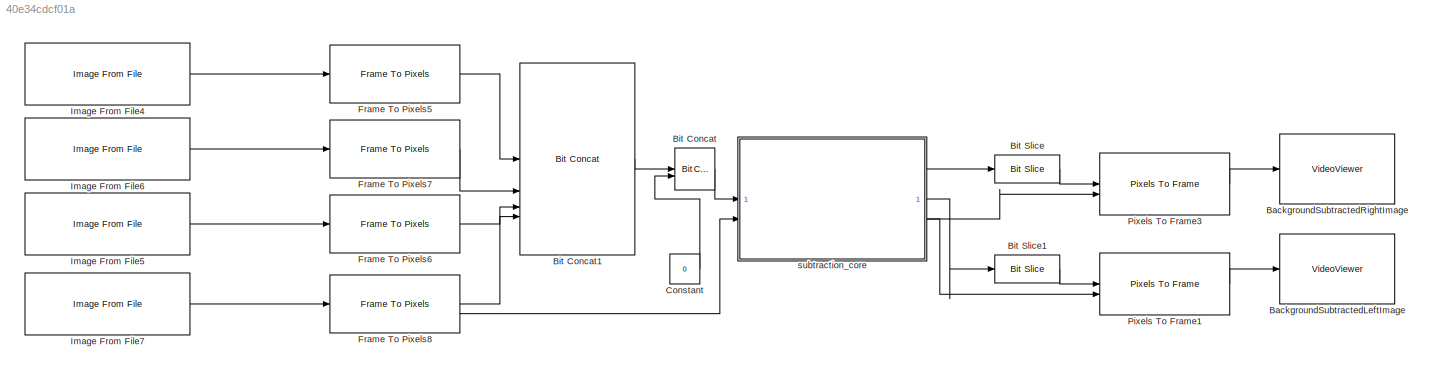
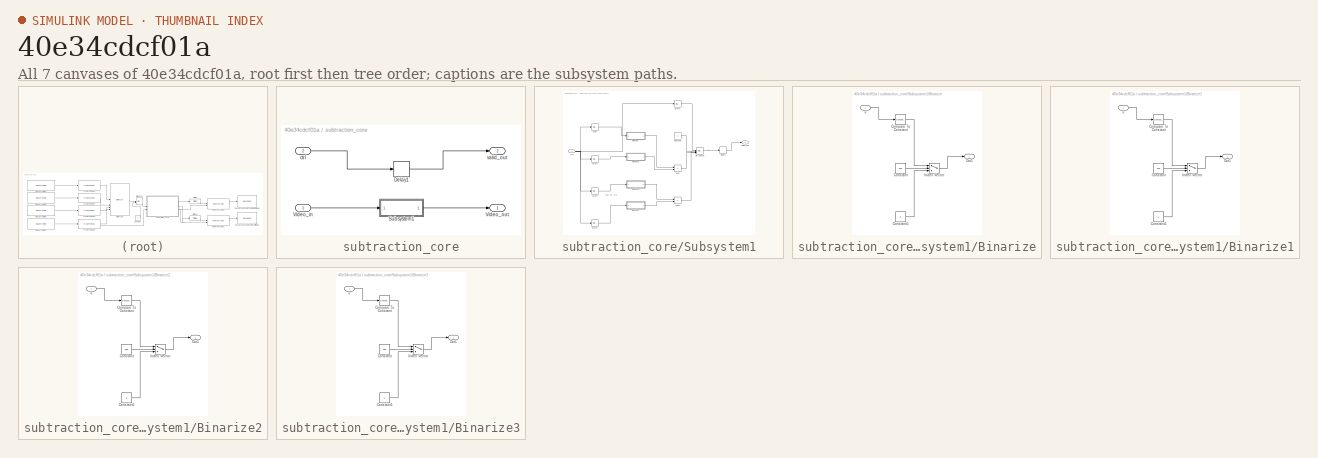
[diagram: thumbnail index - all 7 canvases of the model, root first then tree order]
MODEL slx_40e34cdcf01a
KIND model
CONFIG AbsTol = auto
CONFIG EnableMultiTasking = off
CONFIG FixedStep = auto
CONFIG MaxStep = auto
CONFIG MinStep = auto
CONFIG RelTol = 1e-3
CONFIG SampleTimeConstraint = Unconstrained
CONFIG SolverName = VariableStepAuto
CONFIG StartTime = 0.0
CONFIG StopTime = 10.0
BLOCK [VideoViewer] BackgroundSubtractedLeftImage
  FigPos = [0 1004 1920 930]
  ScopeSpecificationString = vipscopes.VideoViewerScopeCfg('CurrentConfiguration', extmgr.ConfigurationSet(extmgr.Configuration('Core','General UI',true),extmgr.Configuration('Core','Source UI',true),extmgr.Configuration('Sources','WiredSimulink',true),extmgr.Configuration('Sources','Simulink',false),extmgr.Configuration('Sources','Workspace',false),extmgr.Configuration('Sources','File',false),extmgr.Configuration('Sources','...<+607ch>
  colormapValue = gray(256)
BLOCK [VideoViewer] BackgroundSubtractedRightImage
  FigPos = [0 1004 1920 930]
  ScopeSpecificationString = vipscopes.VideoViewerScopeCfg('CurrentConfiguration', extmgr.ConfigurationSet(extmgr.Configuration('Core','General UI',true),extmgr.Configuration('Core','Source UI',true),extmgr.Configuration('Sources','WiredSimulink',true),extmgr.Configuration('Sources','Simulink',false),extmgr.Configuration('Sources','Workspace',false),extmgr.Configuration('Sources','File',false),extmgr.Configuration('Sources','...<+607ch>
  colormapValue = gray(256)
BLOCK [Reference] Bit Concat  REF=hdlsllib/Logic and Bit
Operations/Bit Concat
  SourceBlock = hdlsllib/Logic and Bit\nOperations/Bit Concat
  SourceType = Bit Concat
BLOCK [Reference] Bit Concat1  REF=hdlsllib/Logic and Bit
Operations/Bit Concat
  SourceBlock = hdlsllib/Logic and Bit\nOperations/Bit Concat
  SourceType = Bit Concat
BLOCK [Reference] Bit Slice  REF=hdlsllib/Logic and Bit
Operations/Bit Slice
  SourceBlock = hdlsllib/Logic and Bit\nOperations/Bit Slice
  SourceType = Bit Slice
BLOCK [Reference] Bit Slice1  REF=hdlsllib/Logic and Bit
Operations/Bit Slice
  SourceBlock = hdlsllib/Logic and Bit\nOperations/Bit Slice
  SourceType = Bit Slice
BLOCK [Constant] Constant
  OutDataTypeStr = uint32
  SampleTime = -1
  Value = 0
BLOCK [Reference] Frame To Pixels5  REF=visionhdlio/Frame To Pixels
  SourceBlock = visionhdlio/Frame To Pixels
  SourceType = Frame To Pixels
BLOCK [Reference] Frame To Pixels6  REF=visionhdlio/Frame To Pixels
  SourceBlock = visionhdlio/Frame To Pixels
  SourceType = Frame To Pixels
BLOCK [Reference] Frame To Pixels7  REF=visionhdlio/Frame To Pixels
  SourceBlock = visionhdlio/Frame To Pixels
  SourceType = Frame To Pixels
BLOCK [Reference] Frame To Pixels8  REF=visionhdlio/Frame To Pixels
  SourceBlock = visionhdlio/Frame To Pixels
  SourceType = Frame To Pixels
BLOCK [Reference] Image From File4  REF=visionsources/Image From File
  SourceBlock = visionsources/Image From File
  SourceType = Image From File
  Tag = vipblks_nd
BLOCK [Reference] Image From File5  REF=visionsources/Image From File
  SourceBlock = visionsources/Image From File
  SourceType = Image From File
  Tag = vipblks_nd
BLOCK [Reference] Image From File6  REF=visionsources/Image From File
  SourceBlock = visionsources/Image From File
  SourceType = Image From File
  Tag = vipblks_nd
BLOCK [Reference] Image From File7  REF=visionsources/Image From File
  SourceBlock = visionsources/Image From File
  SourceType = Image From File
  Tag = vipblks_nd
BLOCK [Reference] Pixels To Frame1  REF=visionhdlio/Pixels To Frame
  SourceBlock = visionhdlio/Pixels To Frame
  SourceType = Pixels To Frame
BLOCK [Reference] Pixels To Frame3  REF=visionhdlio/Pixels To Frame
  SourceBlock = visionhdlio/Pixels To Frame
  SourceType = Pixels To Frame
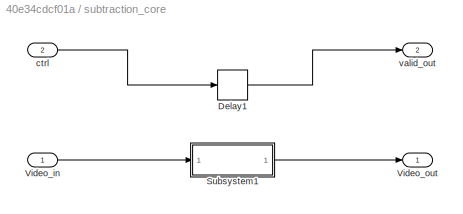
BLOCK [SubSystem] subtraction_core
  TreatAsAtomicUnit = on
BLOCK [Delay] subtraction_core/Delay1
  DelayLength = double(2)
  InputPortMap = u0
  SampleTime = 2.77039007092199e-06
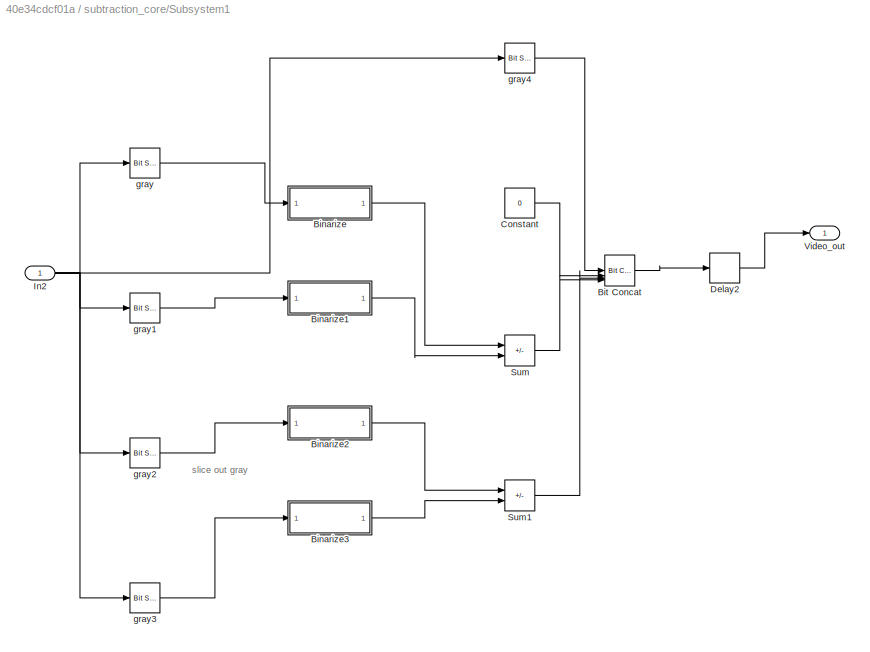
BLOCK [SubSystem] subtraction_core/Subsystem1
BLOCK [SubSystem] subtraction_core/Subsystem1/Binarize
BLOCK [Reference] subtraction_core/Subsystem1/Binarize/Compare To Constant  REF=simulink/Logic and Bit
Operations/Compare
To Constant
  SourceBlock = simulink/Logic and Bit\nOperations/Compare\nTo Constant
  SourceType = Compare To Constant
BLOCK [Constant] subtraction_core/Subsystem1/Binarize/Constant
  OutDataTypeStr = uint8
  SampleTime = 2.77039007092199e-06
  Value = 255
BLOCK [Constant] subtraction_core/Subsystem1/Binarize/Constant1
  OutDataTypeStr = int8
  SampleTime = 2.77039007092199e-06
  Value = 0
BLOCK [MultiPortSwitch] subtraction_core/Subsystem1/Binarize/Index Vector
  DataPortOrder = Zero-based contiguous
  DiagnosticForDefault = None
  InputSameDT = off
  Inputs = 2
  OutDataTypeStr = uint8
  SampleTime = 2.77039007092199e-06
  SaturateOnIntegerOverflow = off
  zeroidx = on
BLOCK [Outport] subtraction_core/Subsystem1/Binarize/Out1
  SampleTime = 2.77039007092199e-06
BLOCK [Inport] subtraction_core/Subsystem1/Binarize/u
  OutDataTypeStr = uint8
  PortDimensions = 1
  SampleTime = 2.77039007092199e-06
BLOCK [SubSystem] subtraction_core/Subsystem1/Binarize1
BLOCK [Reference] subtraction_core/Subsystem1/Binarize1/Compare To Constant  REF=simulink/Logic and Bit
Operations/Compare
To Constant
  SourceBlock = simulink/Logic and Bit\nOperations/Compare\nTo Constant
  SourceType = Compare To Constant
BLOCK [Constant] subtraction_core/Subsystem1/Binarize1/Constant
  OutDataTypeStr = uint8
  SampleTime = 2.77039007092199e-06
  Value = 255
BLOCK [Constant] subtraction_core/Subsystem1/Binarize1/Constant1
  OutDataTypeStr = int8
  SampleTime = 2.77039007092199e-06
  Value = 0
BLOCK [MultiPortSwitch] subtraction_core/Subsystem1/Binarize1/Index Vector
  DataPortOrder = Zero-based contiguous
  DiagnosticForDefault = None
  InputSameDT = off
  Inputs = 2
  OutDataTypeStr = uint8
  SampleTime = 2.77039007092199e-06
  SaturateOnIntegerOverflow = off
  zeroidx = on
BLOCK [Outport] subtraction_core/Subsystem1/Binarize1/Out1
  SampleTime = 2.77039007092199e-06
BLOCK [Inport] subtraction_core/Subsystem1/Binarize1/u
  OutDataTypeStr = uint8
  PortDimensions = 1
  SampleTime = 2.77039007092199e-06
BLOCK [SubSystem] subtraction_core/Subsystem1/Binarize2
BLOCK [Reference] subtraction_core/Subsystem1/Binarize2/Compare To Constant  REF=simulink/Logic and Bit
Operations/Compare
To Constant
  SourceBlock = simulink/Logic and Bit\nOperations/Compare\nTo Constant
  SourceType = Compare To Constant
BLOCK [Constant] subtraction_core/Subsystem1/Binarize2/Constant
  OutDataTypeStr = uint8
  SampleTime = 2.77039007092199e-06
  Value = 255
BLOCK [Constant] subtraction_core/Subsystem1/Binarize2/Constant1
  OutDataTypeStr = int8
  SampleTime = 2.77039007092199e-06
  Value = 0
BLOCK [MultiPortSwitch] subtraction_core/Subsystem1/Binarize2/Index Vector
  DataPortOrder = Zero-based contiguous
  DiagnosticForDefault = None
  InputSameDT = off
  Inputs = 2
  OutDataTypeStr = uint8
  SampleTime = 2.77039007092199e-06
  SaturateOnIntegerOverflow = off
  zeroidx = on
BLOCK [Outport] subtraction_core/Subsystem1/Binarize2/Out1
  SampleTime = 2.77039007092199e-06
BLOCK [Inport] subtraction_core/Subsystem1/Binarize2/u
  OutDataTypeStr = uint8
  PortDimensions = 1
  SampleTime = 2.77039007092199e-06
BLOCK [SubSystem] subtraction_core/Subsystem1/Binarize3
BLOCK [Reference] subtraction_core/Subsystem1/Binarize3/Compare To Constant  REF=simulink/Logic and Bit
Operations/Compare
To Constant
  SourceBlock = simulink/Logic and Bit\nOperations/Compare\nTo Constant
  SourceType = Compare To Constant
BLOCK [Constant] subtraction_core/Subsystem1/Binarize3/Constant
  OutDataTypeStr = uint8
  SampleTime = 2.77039007092199e-06
  Value = 255
BLOCK [Constant] subtraction_core/Subsystem1/Binarize3/Constant1
  OutDataTypeStr = int8
  SampleTime = 2.77039007092199e-06
  Value = 0
BLOCK [MultiPortSwitch] subtraction_core/Subsystem1/Binarize3/Index Vector
  DataPortOrder = Zero-based contiguous
  DiagnosticForDefault = None
  InputSameDT = off
  Inputs = 2
  OutDataTypeStr = uint8
  SampleTime = 2.77039007092199e-06
  SaturateOnIntegerOverflow = off
  zeroidx = on
BLOCK [Outport] subtraction_core/Subsystem1/Binarize3/Out1
  SampleTime = 2.77039007092199e-06
BLOCK [Inport] subtraction_core/Subsystem1/Binarize3/u
  OutDataTypeStr = uint8
  PortDimensions = 1
  SampleTime = 2.77039007092199e-06
BLOCK [Reference] subtraction_core/Subsystem1/Bit Concat  REF=hdlsllib/Logic and Bit
Operations/Bit Concat
  SourceBlock = hdlsllib/Logic and Bit\nOperations/Bit Concat
  SourceType = Bit Concat
BLOCK [Constant] subtraction_core/Subsystem1/Constant
  OutDataTypeStr = uint16
  SampleTime = 2.77039007092199e-06
  Value = 0
BLOCK [Delay] subtraction_core/Subsystem1/Delay2
  DelayLength = double(2)
  InitialCondition = 0
  InputPortMap = u0
  SampleTime = 2.77039007092199e-06
BLOCK [Inport] subtraction_core/Subsystem1/In2
  OutDataTypeStr = fixdt(0, 64, 0)
  PortDimensions = 1
  SampleTime = 2.77039007092199e-06
BLOCK [Sum] subtraction_core/Subsystem1/Sum
  AccumDataTypeStr = fixdt(1, 9, 0)
  IconShape = rectangular
  Inputs = +-
  OutDataTypeStr = uint8
  SampleTime = 2.77039007092199e-06
  SaturateOnIntegerOverflow = on
BLOCK [Sum] subtraction_core/Subsystem1/Sum1
  AccumDataTypeStr = fixdt(1, 9, 0)
  IconShape = rectangular
  Inputs = +-
  OutDataTypeStr = uint8
  SampleTime = 2.77039007092199e-06
  SaturateOnIntegerOverflow = on
BLOCK [Outport] subtraction_core/Subsystem1/Video_out
  InitialOutput = [0]
  SampleTime = 2.77039007092199e-06
BLOCK [Reference] subtraction_core/Subsystem1/gray  REF=hdlsllib/Logic and Bit
Operations/Bit Slice
  SourceBlock = hdlsllib/Logic and Bit\nOperations/Bit Slice
  SourceType = Bit Slice
BLOCK [Reference] subtraction_core/Subsystem1/gray1  REF=hdlsllib/Logic and Bit
Operations/Bit Slice
  SourceBlock = hdlsllib/Logic and Bit\nOperations/Bit Slice
  SourceType = Bit Slice
BLOCK [Reference] subtraction_core/Subsystem1/gray2  REF=hdlsllib/Logic and Bit
Operations/Bit Slice
  SourceBlock = hdlsllib/Logic and Bit\nOperations/Bit Slice
  SourceType = Bit Slice
BLOCK [Reference] subtraction_core/Subsystem1/gray3  REF=hdlsllib/Logic and Bit
Operations/Bit Slice
  SourceBlock = hdlsllib/Logic and Bit\nOperations/Bit Slice
  SourceType = Bit Slice
BLOCK [Reference] subtraction_core/Subsystem1/gray4  REF=hdlsllib/Logic and Bit
Operations/Bit Slice
  SourceBlock = hdlsllib/Logic and Bit\nOperations/Bit Slice
  SourceType = Bit Slice
BLOCK [Inport] subtraction_core/Video_in
  OutDataTypeStr = fixdt(0, 64, 0)
  PortDimensions = 1
  SampleTime = 2.77039007092199e-06
BLOCK [Outport] subtraction_core/Video_out
  SampleTime = 2.77039007092199e-06
  VectorParamsAs1DForOutWhenUnconnected = off
BLOCK [Inport] subtraction_core/ctrl
  Port = 2
BLOCK [Outport] subtraction_core/valid_out
  Port = 2
  VectorParamsAs1DForOutWhenUnconnected = off
ANNOTATION subtraction_core/Subsystem1: slice out gray
LINE Bit Concat1:1 -> Bit Concat:1
LINE Bit Concat:1 -> subtraction_core:1
LINE Bit Slice1:1 -> Pixels To Frame1:1
LINE Bit Slice:1 -> Pixels To Frame3:1
LINE Constant:1 -> Bit Concat:2
LINE Frame To Pixels5:1 -> Bit Concat1:1
LINE Frame To Pixels6:1 -> Bit Concat1:3
LINE Frame To Pixels7:1 -> Bit Concat1:2
LINE Frame To Pixels8:1 -> Bit Concat1:4
LINE Frame To Pixels8:2 -> subtraction_core:2
LINE Image From File4:1 -> Frame To Pixels5:1
LINE Image From File5:1 -> Frame To Pixels6:1
LINE Image From File6:1 -> Frame To Pixels7:1
LINE Image From File7:1 -> Frame To Pixels8:1
LINE Pixels To Frame1:1 -> BackgroundSubtractedLeftImage:1
LINE Pixels To Frame3:1 -> BackgroundSubtractedRightImage:1
LINE subtraction_core/Delay1:1 -> subtraction_core/valid_out:1
LINE subtraction_core/Subsystem1/Binarize/Compare To Constant:1 -> subtraction_core/Subsystem1/Binarize/Index Vector:1
LINE subtraction_core/Subsystem1/Binarize/Constant1:1 -> subtraction_core/Subsystem1/Binarize/Index Vector:3
LINE subtraction_core/Subsystem1/Binarize/Constant:1 -> subtraction_core/Subsystem1/Binarize/Index Vector:2
LINE subtraction_core/Subsystem1/Binarize/Index Vector:1 -> subtraction_core/Subsystem1/Binarize/Out1:1
LINE subtraction_core/Subsystem1/Binarize/u:1 -> subtraction_core/Subsystem1/Binarize/Compare To Constant:1
LINE subtraction_core/Subsystem1/Binarize1/Compare To Constant:1 -> subtraction_core/Subsystem1/Binarize1/Index Vector:1
LINE subtraction_core/Subsystem1/Binarize1/Constant1:1 -> subtraction_core/Subsystem1/Binarize1/Index Vector:3
LINE subtraction_core/Subsystem1/Binarize1/Constant:1 -> subtraction_core/Subsystem1/Binarize1/Index Vector:2
LINE subtraction_core/Subsystem1/Binarize1/Index Vector:1 -> subtraction_core/Subsystem1/Binarize1/Out1:1
LINE subtraction_core/Subsystem1/Binarize1/u:1 -> subtraction_core/Subsystem1/Binarize1/Compare To Constant:1
LINE subtraction_core/Subsystem1/Binarize1:1 -> subtraction_core/Subsystem1/Sum:2
LINE subtraction_core/Subsystem1/Binarize2/Compare To Constant:1 -> subtraction_core/Subsystem1/Binarize2/Index Vector:1
LINE subtraction_core/Subsystem1/Binarize2/Constant1:1 -> subtraction_core/Subsystem1/Binarize2/Index Vector:3
LINE subtraction_core/Subsystem1/Binarize2/Constant:1 -> subtraction_core/Subsystem1/Binarize2/Index Vector:2
LINE subtraction_core/Subsystem1/Binarize2/Index Vector:1 -> subtraction_core/Subsystem1/Binarize2/Out1:1
LINE subtraction_core/Subsystem1/Binarize2/u:1 -> subtraction_core/Subsystem1/Binarize2/Compare To Constant:1
LINE subtraction_core/Subsystem1/Binarize2:1 -> subtraction_core/Subsystem1/Sum1:1
LINE subtraction_core/Subsystem1/Binarize3/Compare To Constant:1 -> subtraction_core/Subsystem1/Binarize3/Index Vector:1
LINE subtraction_core/Subsystem1/Binarize3/Constant1:1 -> subtraction_core/Subsystem1/Binarize3/Index Vector:3
LINE subtraction_core/Subsystem1/Binarize3/Constant:1 -> subtraction_core/Subsystem1/Binarize3/Index Vector:2
LINE subtraction_core/Subsystem1/Binarize3/Index Vector:1 -> subtraction_core/Subsystem1/Binarize3/Out1:1
LINE subtraction_core/Subsystem1/Binarize3/u:1 -> subtraction_core/Subsystem1/Binarize3/Compare To Constant:1
LINE subtraction_core/Subsystem1/Binarize3:1 -> subtraction_core/Subsystem1/Sum1:2
LINE subtraction_core/Subsystem1/Binarize:1 -> subtraction_core/Subsystem1/Sum:1
LINE subtraction_core/Subsystem1/Bit Concat:1 -> subtraction_core/Subsystem1/Delay2:1
LINE subtraction_core/Subsystem1/Constant:1 -> subtraction_core/Subsystem1/Bit Concat:2
LINE subtraction_core/Subsystem1/Delay2:1 -> subtraction_core/Subsystem1/Video_out:1
NET subtraction_core/Subsystem1/In2:1 -> subtraction_core/Subsystem1/gray1:1, subtraction_core/Subsystem1/gray2:1, subtraction_core/Subsystem1/gray3:1, subtraction_core/Subsystem1/gray4:1, subtraction_core/Subsystem1/gray:1
LINE subtraction_core/Subsystem1/Sum1:1 -> subtraction_core/Subsystem1/Bit Concat:3
LINE subtraction_core/Subsystem1/Sum:1 -> subtraction_core/Subsystem1/Bit Concat:4
LINE subtraction_core/Subsystem1/gray1:1 -> subtraction_core/Subsystem1/Binarize1:1
LINE subtraction_core/Subsystem1/gray2:1 -> subtraction_core/Subsystem1/Binarize2:1
LINE subtraction_core/Subsystem1/gray3:1 -> subtraction_core/Subsystem1/Binarize3:1
LINE subtraction_core/Subsystem1/gray4:1 -> subtraction_core/Subsystem1/Bit Concat:1
LINE subtraction_core/Subsystem1/gray:1 -> subtraction_core/Subsystem1/Binarize:1
LINE subtraction_core/Subsystem1:1 -> subtraction_core/Video_out:1
LINE subtraction_core/Video_in:1 -> subtraction_core/Subsystem1:1
LINE subtraction_core/ctrl:1 -> subtraction_core/Delay1:1
NET subtraction_core:1 -> Bit Slice1:1, Bit Slice:1
NET subtraction_core:2 -> Pixels To Frame1:2, Pixels To Frame3:2
note: NET lines group one-source signal fan-out (src -> all destinations, sorted); 1:1 wires keep LINE
